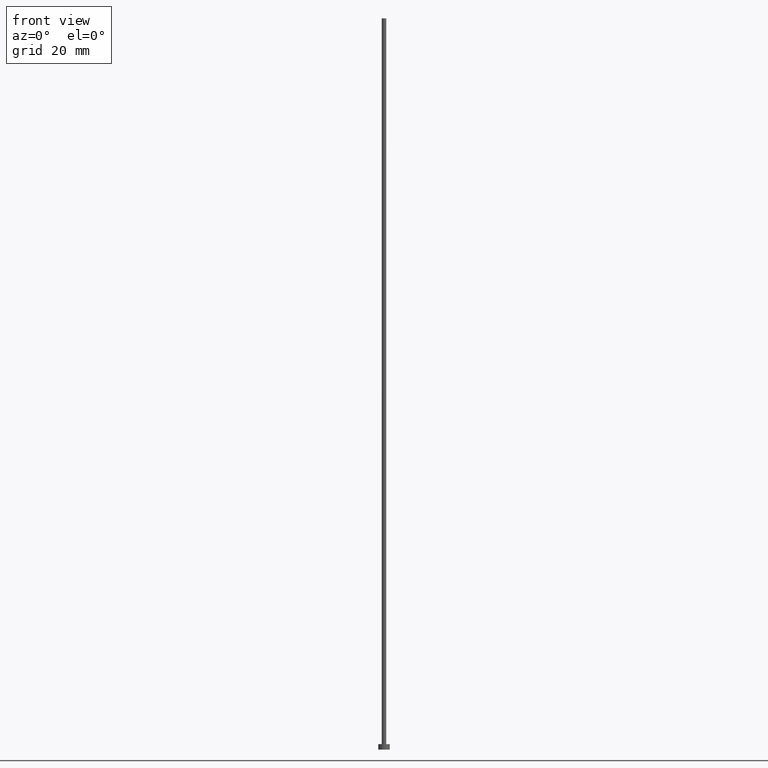
[diagram: clean part render]
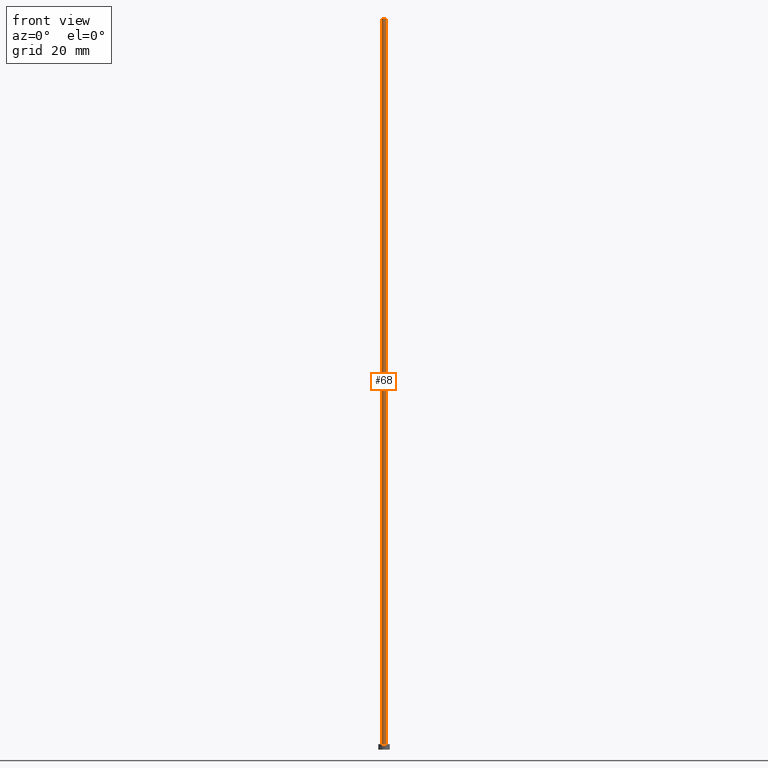
[diagram: same view with one face highlighted and labeled with its STEP entity id]
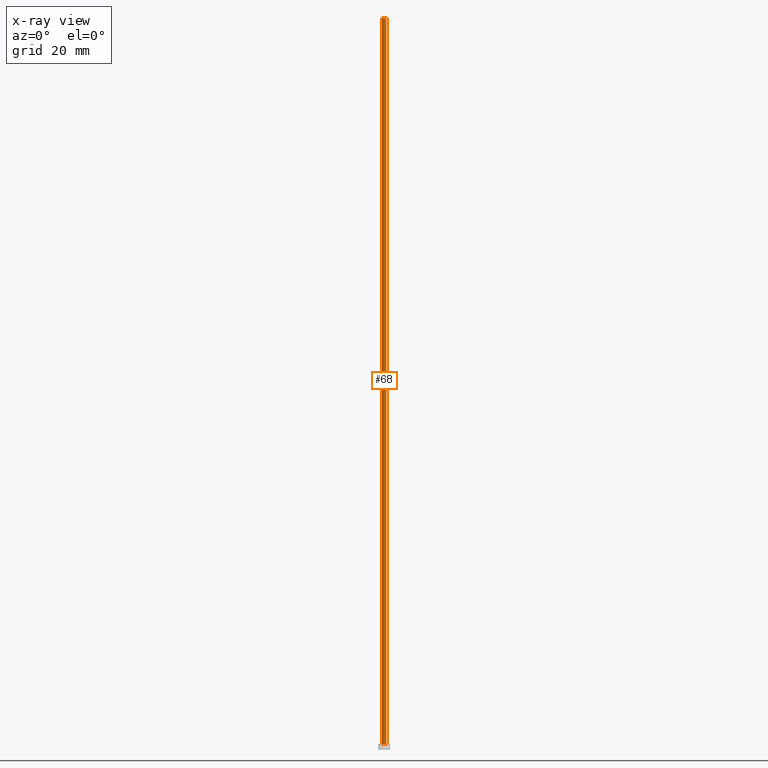
[diagram: x-ray of the same camera — body ghosted, the highlighted face saturated]
A machine part, front view. The second image highlights one B-rep face of the part: STEP entity #68.
The next image is the same camera in x-ray: the body ghosted, the highlighted face saturated — about 0% of this face is hidden behind the body in this view.
In plain terms, the highlighted cylindrical surface (edge-blend (fillet) strip) has radius 0.5 mm, axis along (-0, -0, -1).
Its self-contained STEP definition (entity closure, byte-faithful):
#7 = AXIS2_PLACEMENT_3D ( 'NONE', #126, #106, #129 ) ;
#9 = CIRCLE ( 'NONE', #7, 0.5000000000000000000 ) ;
#13 = VERTEX_POINT ( 'NONE', #77 ) ;
#21 = DIRECTION ( 'NONE',  ( -0.000000000000000000, -0.000000000000000000, -1.000000000000000000 ) ) ;
#30 = EDGE_CURVE ( 'NONE', #153, #13, #40, .T. ) ;
#34 = ORIENTED_EDGE ( 'NONE', *, *, #244, .F. ) ;
#35 = VECTOR ( 'NONE', #21, 1000.000000000000000 ) ;
#37 = CYLINDRICAL_SURFACE ( 'NONE', #154, 0.5000000000000000000 ) ;
#40 = LINE ( 'NONE', #189, #78 ) ;
#48 = LINE ( 'NONE', #237, #35 ) ;
#65 = DIRECTION ( 'NONE',  ( 1.000000000000000000, 0.000000000000000000, 0.000000000000000000 ) ) ;
#68 = ADVANCED_FACE ( 'NONE', ( #98 ), #37, .T. ) ;
#77 = CARTESIAN_POINT ( 'NONE',  ( -0.5000000000000000000, 0.000000000000000000, 1.199999999999999956 ) ) ;
#78 = VECTOR ( 'NONE', #121, 1000.000000000000000 ) ;
#88 = ORIENTED_EDGE ( 'NONE', *, *, #30, .T. ) ;
#93 = ORIENTED_EDGE ( 'NONE', *, *, #236, .F. ) ;
#98 = FACE_OUTER_BOUND ( 'NONE', #198, .T. ) ;
#100 = CIRCLE ( 'NONE', #235, 0.5000000000000000000 ) ;
#106 = DIRECTION ( 'NONE',  ( 0.000000000000000000, 0.000000000000000000, 1.000000000000000000 ) ) ;
#110 = ORIENTED_EDGE ( 'NONE', *, *, #222, .T. ) ;
#112 = VERTEX_POINT ( 'NONE', #181 ) ;
#121 = DIRECTION ( 'NONE',  ( -0.000000000000000000, -0.000000000000000000, -1.000000000000000000 ) ) ;
#126 = CARTESIAN_POINT ( 'NONE',  ( 0.000000000000000000, 0.000000000000000000, 160.0000000000000284 ) ) ;
#129 = DIRECTION ( 'NONE',  ( 1.000000000000000000, 0.000000000000000000, 0.000000000000000000 ) ) ;
#143 = DIRECTION ( 'NONE',  ( -1.000000000000000000, 0.000000000000000000, 0.000000000000000000 ) ) ;
#153 = VERTEX_POINT ( 'NONE', #178 ) ;
#154 = AXIS2_PLACEMENT_3D ( 'NONE', #175, #248, #143 ) ;
#160 = VERTEX_POINT ( 'NONE', #210 ) ;
#175 = CARTESIAN_POINT ( 'NONE',  ( 0.000000000000000000, 0.000000000000000000, 160.0000000000000284 ) ) ;
#178 = CARTESIAN_POINT ( 'NONE',  ( -0.5000000000000000000, 0.000000000000000000, 160.0000000000000284 ) ) ;
#181 = CARTESIAN_POINT ( 'NONE',  ( 0.5000000000000000000, 6.123233995736766036E-17, 160.0000000000000284 ) ) ;
#189 = CARTESIAN_POINT ( 'NONE',  ( -0.5000000000000000000, 0.000000000000000000, 160.0000000000000284 ) ) ;
#198 = EDGE_LOOP ( 'NONE', ( #93, #34, #88, #110 ) ) ;
#210 = CARTESIAN_POINT ( 'NONE',  ( 0.5000000000000000000, 6.123233995736766036E-17, 1.199999999999999956 ) ) ;
#215 = CARTESIAN_POINT ( 'NONE',  ( 0.000000000000000000, 0.000000000000000000, 1.199999999999999956 ) ) ;
#222 = EDGE_CURVE ( 'NONE', #13, #160, #100, .T. ) ;
#233 = DIRECTION ( 'NONE',  ( 0.000000000000000000, 0.000000000000000000, 1.000000000000000000 ) ) ;
#235 = AXIS2_PLACEMENT_3D ( 'NONE', #215, #233, #65 ) ;
#236 = EDGE_CURVE ( 'NONE', #112, #160, #48, .T. ) ;
#237 = CARTESIAN_POINT ( 'NONE',  ( 0.5000000000000000000, 6.123233995736766036E-17, 160.0000000000000284 ) ) ;
#244 = EDGE_CURVE ( 'NONE', #153, #112, #9, .T. ) ;
#248 = DIRECTION ( 'NONE',  ( -0.000000000000000000, -0.000000000000000000, -1.000000000000000000 ) ) ;